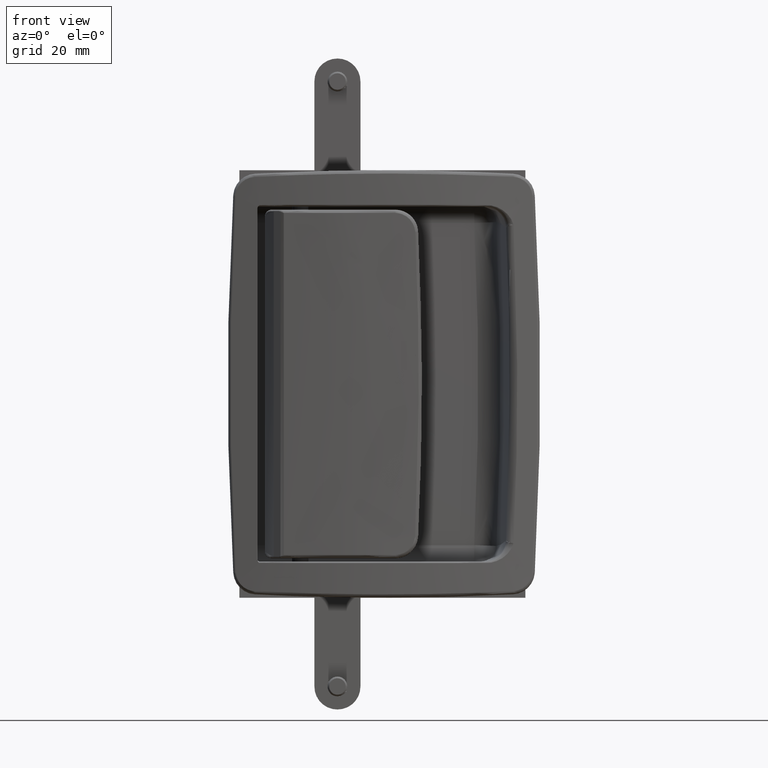
[diagram: clean part render]
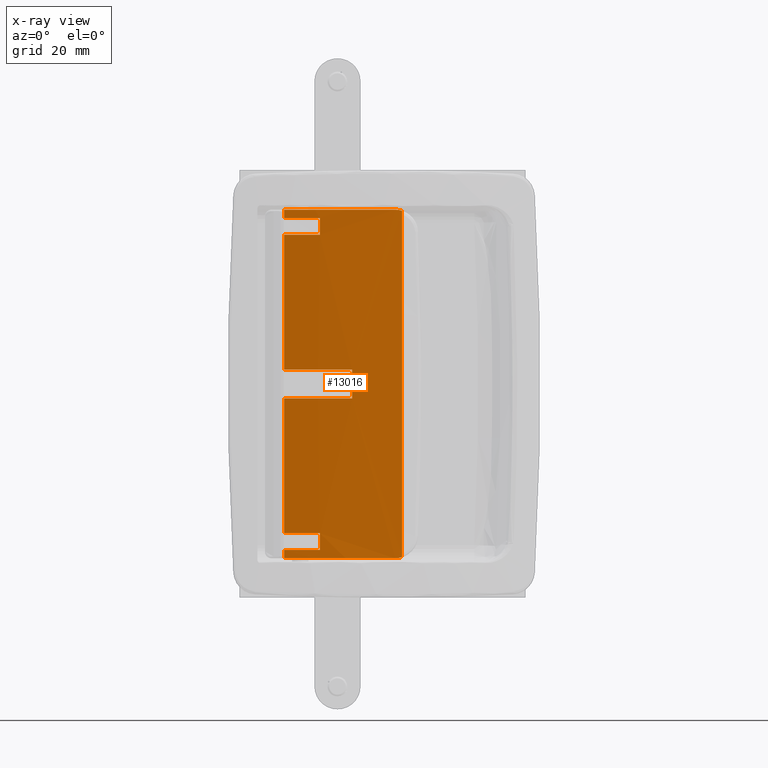
[diagram: x-ray — body ghosted, one internal face saturated and labeled with its STEP entity id]
A machine part, front view, then the same camera in x-ray: the body is ghosted and one INTERNAL B-rep face — a face not visible from any outside direction — is saturated and labeled: STEP entity #13016.
In plain terms, the highlighted face is a freeform B-spline surface patch.
Its self-contained STEP definition (entity closure, byte-faithful):
#11481=CARTESIAN_POINT('',(50.893822555669999,-8.169481475120840,-52.999999999724700));
#11482=VERTEX_POINT('',#11481);
#11488=CARTESIAN_POINT('',(53.029306959477999,-8.118981389351818,-52.666311300668603));
#11489=VERTEX_POINT('',#11488);
#11490=CARTESIAN_POINT('',(50.893822555669999,-8.169481475120840,-52.999999999724700));
#11491=CARTESIAN_POINT('',(51.617285696081808,-8.156371900067077,-53.000197565848907));
#11492=CARTESIAN_POINT('',(52.340566892598048,-8.139270519850081,-52.887258342511053));
#11493=CARTESIAN_POINT('',(53.029306959477999,-8.118981389351818,-52.666311300668603));
#11494=B_SPLINE_CURVE_WITH_KNOTS('',3,(#11490,#11491,#11492,#11493),.UNSPECIFIED.,.F.,.U.,(4,4),(0.000000011557547,2.170712353050040),.UNSPECIFIED.);
#11495=EDGE_CURVE('',#11482,#11489,#11494,.T.);
#11589=CARTESIAN_POINT('',(17.135004454595400,-5.741132670063000,-52.999999999724700));
#11590=VERTEX_POINT('',#11589);
#11598=CARTESIAN_POINT('',(50.893822555669999,-8.169481475120840,-52.999999999724700));
#11599=CARTESIAN_POINT('',(39.598434383631641,-8.373136551351566,-52.999999999724793));
#11600=CARTESIAN_POINT('',(28.284930427329851,-7.559671235240724,-52.999999999724878));
#11601=CARTESIAN_POINT('',(17.135004454595400,-5.741132670063000,-52.999999999724700));
#11602=B_SPLINE_CURVE_WITH_KNOTS('',3,(#11598,#11599,#11600,#11601),.UNSPECIFIED.,.F.,.U.,(4,4),(7.342535E-010,33.891579768049262),.UNSPECIFIED.);
#11603=EDGE_CURVE('',#11482,#11590,#11602,.T.);
#11740=CARTESIAN_POINT('',(50.893822555685603,-8.169481475120561,52.999999999683197));
#11741=VERTEX_POINT('',#11740);
#11747=CARTESIAN_POINT('',(17.135004454595400,-5.741132670063000,52.999999999683197));
#11748=VERTEX_POINT('',#11747);
#11749=CARTESIAN_POINT('',(50.893822555685603,-8.169481475120561,52.999999999683197));
#11750=CARTESIAN_POINT('',(39.598411870116983,-8.373471016152768,52.999999999682657));
#11751=CARTESIAN_POINT('',(28.284955686939281,-7.559335639994488,52.999999999683418));
#11752=CARTESIAN_POINT('',(17.135004454595400,-5.741132670063000,52.999999999683197));
#11753=B_SPLINE_CURVE_WITH_KNOTS('',3,(#11749,#11750,#11751,#11752),.UNSPECIFIED.,.F.,.U.,(4,4),(7.356462E-010,33.891579768064872),.UNSPECIFIED.);
#11754=EDGE_CURVE('',#11741,#11748,#11753,.T.);
#11844=CARTESIAN_POINT('',(53.029306959477999,-8.118981389351818,52.666311300506997));
#11845=VERTEX_POINT('',#11844);
#11856=CARTESIAN_POINT('',(53.029306959477999,-8.118981389351818,52.666311300506997));
#11857=CARTESIAN_POINT('',(52.340562121318868,-8.139323636908982,52.887187221424433));
#11858=CARTESIAN_POINT('',(51.617299207064100,-8.156430343089197,53.000285518581777));
#11859=CARTESIAN_POINT('',(50.893822555685603,-8.169481475120561,52.999999999683197));
#11860=B_SPLINE_CURVE_WITH_KNOTS('',3,(#11856,#11857,#11858,#11859),.UNSPECIFIED.,.F.,.U.,(4,4),(0.000000011561649,2.170713791909563),.UNSPECIFIED.);
#11861=EDGE_CURVE('',#11845,#11741,#11860,.T.);
#11871=CARTESIAN_POINT('',(17.135004454595400,-5.741132670062910,-50.500000000000000));
#11872=VERTEX_POINT('',#11871);
#11873=CARTESIAN_POINT('',(27.999999999988852,-7.189856117119351,-50.500000000000000));
#11874=VERTEX_POINT('',#11873);
#11875=CARTESIAN_POINT('',(17.135004454595400,-5.741132670062910,-50.500000000000000));
#11876=CARTESIAN_POINT('',(20.741625652111232,-6.329104808307127,-50.499999999999943));
#11877=CARTESIAN_POINT('',(24.365325958119140,-6.812279381227325,-50.500000000000007));
#11878=CARTESIAN_POINT('',(27.999999999988852,-7.189856117119351,-50.500000000000000));
#11879=B_SPLINE_CURVE_WITH_KNOTS('',3,(#11875,#11876,#11877,#11878),.UNSPECIFIED.,.F.,.U.,(4,4),(7.183409E-011,10.962702711517130),.UNSPECIFIED.);
#11880=EDGE_CURVE('',#11872,#11874,#11879,.T.);
#11956=CARTESIAN_POINT('',(17.135004454595400,-5.741132670062910,-45.400000000000013));
#11957=VERTEX_POINT('',#11956);
#11965=CARTESIAN_POINT('',(27.999999999988852,-7.189856117119351,-45.400000000000013));
#11966=VERTEX_POINT('',#11965);
#11967=CARTESIAN_POINT('',(17.135004454595400,-5.741132670062910,-45.400000000000013));
#11968=CARTESIAN_POINT('',(20.741625652111232,-6.329104808307129,-45.399999999999871));
#11969=CARTESIAN_POINT('',(24.365325958119119,-6.812279381227321,-45.400000000000112));
#11970=CARTESIAN_POINT('',(27.999999999988852,-7.189856117119351,-45.400000000000013));
#11971=B_SPLINE_CURVE_WITH_KNOTS('',3,(#11967,#11968,#11969,#11970),.UNSPECIFIED.,.F.,.U.,(4,4),(7.183409E-011,10.962702711517130),.UNSPECIFIED.);
#11972=EDGE_CURVE('',#11957,#11966,#11971,.T.);
#12092=CARTESIAN_POINT('',(27.999999999988852,-7.189856117119351,-45.400000000000013));
#12093=CARTESIAN_POINT('',(27.999999999988852,-7.189856117119351,-50.500000000000000));
#12094=QUASI_UNIFORM_CURVE('',1,(#12092,#12093),.UNSPECIFIED.,.F.,.U.);
#12095=EDGE_CURVE('',#11966,#11874,#12094,.T.);
#12105=CARTESIAN_POINT('',(27.999999999988852,-7.189856117119351,50.500000000000000));
#12106=VERTEX_POINT('',#12105);
#12107=CARTESIAN_POINT('',(17.135004454595400,-5.741132670062910,50.500000000000000));
#12108=VERTEX_POINT('',#12107);
#12109=CARTESIAN_POINT('',(27.999999999988852,-7.189856117119351,50.500000000000000));
#12110=CARTESIAN_POINT('',(24.365323801645609,-6.812283628435539,50.499999999999957));
#12111=CARTESIAN_POINT('',(20.741625916384539,-6.329100278493796,50.500000000000057));
#12112=CARTESIAN_POINT('',(17.135004454595400,-5.741132670062910,50.500000000000000));
#12113=B_SPLINE_CURVE_WITH_KNOTS('',3,(#12109,#12110,#12111,#12112),.UNSPECIFIED.,.F.,.U.,(4,4),(7.205792E-011,10.962702711517130),.UNSPECIFIED.);
#12114=EDGE_CURVE('',#12106,#12108,#12113,.T.);
#12188=CARTESIAN_POINT('',(27.999999999988852,-7.189856117119351,45.400000000000013));
#12189=VERTEX_POINT('',#12188);
#12197=CARTESIAN_POINT('',(17.135004454595400,-5.741132670062910,45.400000000000013));
#12198=VERTEX_POINT('',#12197);
#12199=CARTESIAN_POINT('',(27.999999999988852,-7.189856117119351,45.400000000000013));
#12200=CARTESIAN_POINT('',(24.365323801645609,-6.812283628435522,45.399999999999999));
#12201=CARTESIAN_POINT('',(20.741625916384539,-6.329100278493812,45.400000000000027));
#12202=CARTESIAN_POINT('',(17.135004454595400,-5.741132670062910,45.400000000000013));
#12203=B_SPLINE_CURVE_WITH_KNOTS('',3,(#12199,#12200,#12201,#12202),.UNSPECIFIED.,.F.,.U.,(4,4),(7.205792E-011,10.962702711517130),.UNSPECIFIED.);
#12204=EDGE_CURVE('',#12189,#12198,#12203,.T.);
#12324=CARTESIAN_POINT('',(27.999999999988852,-7.189856117119351,45.400000000000013));
#12325=CARTESIAN_POINT('',(27.999999999988852,-7.189856117119351,50.500000000000000));
#12326=QUASI_UNIFORM_CURVE('',1,(#12324,#12325),.UNSPECIFIED.,.F.,.U.);
#12327=EDGE_CURVE('',#12189,#12106,#12326,.T.);
#12399=CARTESIAN_POINT('',(37.794290015901502,-7.950257626811150,4.400000000000000));
#12400=VERTEX_POINT('',#12399);
#12401=CARTESIAN_POINT('',(37.794290015901502,-7.950257626811140,-4.400000000000000));
#12402=VERTEX_POINT('',#12401);
#12403=CARTESIAN_POINT('',(37.794290015901502,-7.950257626811150,4.400000000000000));
#12404=CARTESIAN_POINT('',(37.794290015901502,-7.950257626811140,-4.400000000000000));
#12405=QUASI_UNIFORM_CURVE('',1,(#12403,#12404),.UNSPECIFIED.,.F.,.U.);
#12406=EDGE_CURVE('',#12400,#12402,#12405,.T.);
#12485=CARTESIAN_POINT('',(53.029306959477999,-8.118981389351818,-52.666311300668603));
#12486=CARTESIAN_POINT('',(53.029306959477999,-8.118981389351818,52.666311300506997));
#12487=QUASI_UNIFORM_CURVE('',1,(#12485,#12486),.UNSPECIFIED.,.F.,.U.);
#12488=EDGE_CURVE('',#11489,#11845,#12487,.T.);
#12782=CARTESIAN_POINT('',(17.135004454595400,-5.741132670063000,4.400000000000000));
#12783=VERTEX_POINT('',#12782);
#12784=CARTESIAN_POINT('',(17.135004454595400,-5.741132670063000,4.400000000000000));
#12785=CARTESIAN_POINT('',(17.135004454595400,-5.741132670062910,45.400000000000013));
#12786=QUASI_UNIFORM_CURVE('',1,(#12784,#12785),.UNSPECIFIED.,.F.,.U.);
#12787=EDGE_CURVE('',#12783,#12198,#12786,.T.);
#12880=CARTESIAN_POINT('',(17.135004454595400,-5.741132670063000,-4.400000000000000));
#12881=VERTEX_POINT('',#12880);
#12889=CARTESIAN_POINT('',(17.135004454595400,-5.741132670062910,-45.400000000000013));
#12890=CARTESIAN_POINT('',(17.135004454595400,-5.741132670063000,-4.400000000000000));
#12891=QUASI_UNIFORM_CURVE('',1,(#12889,#12890),.UNSPECIFIED.,.F.,.U.);
#12892=EDGE_CURVE('',#11957,#12881,#12891,.T.);
#12911=CARTESIAN_POINT('',(17.135004454595400,-5.741132670062910,50.500000000000000));
#12912=CARTESIAN_POINT('',(17.135004454595400,-5.741132670063000,52.999999999683197));
#12913=QUASI_UNIFORM_CURVE('',1,(#12911,#12912),.UNSPECIFIED.,.F.,.U.);
#12914=EDGE_CURVE('',#12108,#11748,#12913,.T.);
#12938=CARTESIAN_POINT('',(17.135004454595400,-5.741132670063000,-52.999999999724700));
#12939=CARTESIAN_POINT('',(17.135004454595400,-5.741132670062910,-50.500000000000000));
#12940=QUASI_UNIFORM_CURVE('',1,(#12938,#12939),.UNSPECIFIED.,.F.,.U.);
#12941=EDGE_CURVE('',#11590,#11872,#12940,.T.);
#12970=CARTESIAN_POINT('',(15.363913592965227,-5.443746316543900,55.649999999668402));
#12971=CARTESIAN_POINT('',(15.363913592965227,-5.443746316543900,-55.716249999709518));
#12972=CARTESIAN_POINT('',(34.956864005964690,-8.829556392119429,55.649999999668388));
#12973=CARTESIAN_POINT('',(34.956864005964690,-8.829556392119429,-55.716249999709518));
#12974=CARTESIAN_POINT('',(54.825225272527312,-8.057781596288876,55.649999999668388));
#12975=CARTESIAN_POINT('',(54.825225272527312,-8.057781596288876,-55.716249999709518));
#12983=(BOUNDED_SURFACE()B_SPLINE_SURFACE(1,2,((#12970,#12972,#12974),(#12971,#12973,#12975)),.UNSPECIFIED.,.F.,.F.,.U.)B_SPLINE_SURFACE_WITH_KNOTS((2,2),(3,3),(0.0,111.366249999377900),(0.0,39.656940988106193),.UNSPECIFIED.)GEOMETRIC_REPRESENTATION_ITEM()RATIONAL_B_SPLINE_SURFACE(((0.998202237291531,0.992396517278281,0.997576506405825),(0.998202237291531,0.992396517278281,0.997576506405825)))REPRESENTATION_ITEM('')SURFACE());
#12984=ORIENTED_EDGE('',*,*,#11861,.F.);
#12985=ORIENTED_EDGE('',*,*,#12488,.F.);
#12986=ORIENTED_EDGE('',*,*,#11495,.F.);
#12987=ORIENTED_EDGE('',*,*,#11603,.T.);
#12988=ORIENTED_EDGE('',*,*,#12941,.T.);
#12989=ORIENTED_EDGE('',*,*,#11880,.T.);
#12990=ORIENTED_EDGE('',*,*,#12095,.F.);
#12991=ORIENTED_EDGE('',*,*,#11972,.F.);
#12992=ORIENTED_EDGE('',*,*,#12892,.T.);
#12993=CARTESIAN_POINT('',(37.794290015901502,-7.950257626811140,-4.400000000000000));
#12994=CARTESIAN_POINT('',(30.874263028123430,-7.593967777863633,-4.399999999999997));
#12995=CARTESIAN_POINT('',(23.973899673772561,-6.856151443675396,-4.400000000000012));
#12996=CARTESIAN_POINT('',(17.135004454595400,-5.741132670063000,-4.400000000000000));
#12997=B_SPLINE_CURVE_WITH_KNOTS('',3,(#12993,#12994,#12995,#12996),.UNSPECIFIED.,.F.,.U.,(4,4),(2.605098E-010,20.787579823930692),.UNSPECIFIED.);
#12998=EDGE_CURVE('',#12402,#12881,#12997,.T.);
#12999=ORIENTED_EDGE('',*,*,#12998,.F.);
#13000=ORIENTED_EDGE('',*,*,#12406,.F.);
#13001=CARTESIAN_POINT('',(37.794290015901502,-7.950257626811150,4.400000000000000));
#13002=CARTESIAN_POINT('',(30.874257677890402,-7.594016602109047,4.400000000000011));
#13003=CARTESIAN_POINT('',(23.973904668406750,-6.856103513666247,4.399999999999993));
#13004=CARTESIAN_POINT('',(17.135004454595400,-5.741132670063000,4.400000000000000));
#13005=B_SPLINE_CURVE_WITH_KNOTS('',3,(#13001,#13002,#13003,#13004),.UNSPECIFIED.,.F.,.U.,(4,4),(2.600409E-010,20.787579823930692),.UNSPECIFIED.);
#13006=EDGE_CURVE('',#12400,#12783,#13005,.T.);
#13007=ORIENTED_EDGE('',*,*,#13006,.T.);
#13008=ORIENTED_EDGE('',*,*,#12787,.T.);
#13009=ORIENTED_EDGE('',*,*,#12204,.F.);
#13010=ORIENTED_EDGE('',*,*,#12327,.T.);
#13011=ORIENTED_EDGE('',*,*,#12114,.T.);
#13012=ORIENTED_EDGE('',*,*,#12914,.T.);
#13013=ORIENTED_EDGE('',*,*,#11754,.F.);
#13014=EDGE_LOOP('',(#12984,#12985,#12986,#12987,#12988,#12989,#12990,#12991,#12992,#12999,#13000,#13007,#13008,#13009,#13010,#13011,#13012,#13013));
#13015=FACE_OUTER_BOUND('',#13014,.T.);
#13016=ADVANCED_FACE('',(#13015),#12983,.F.);